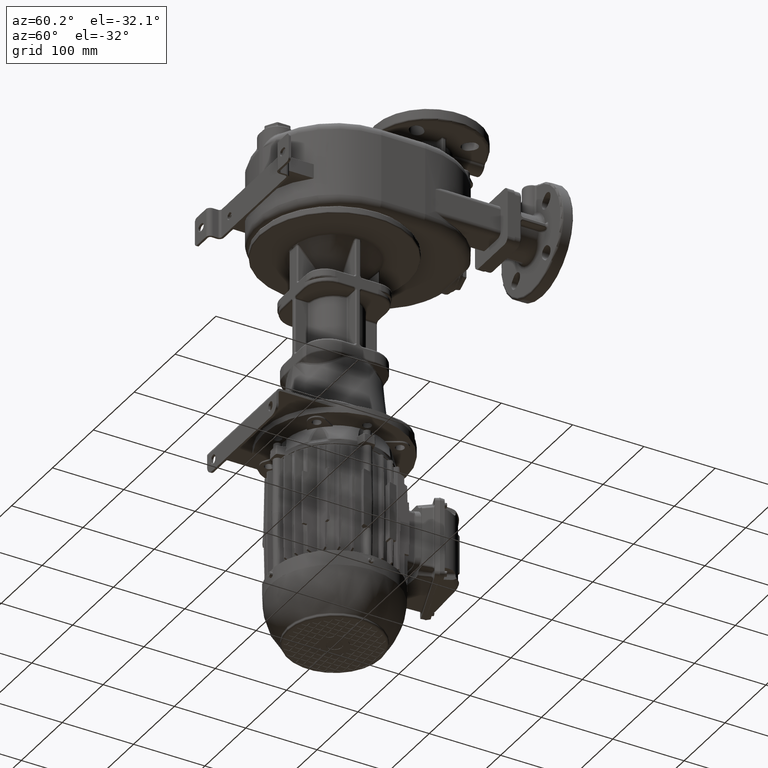
[diagram: clean part render]
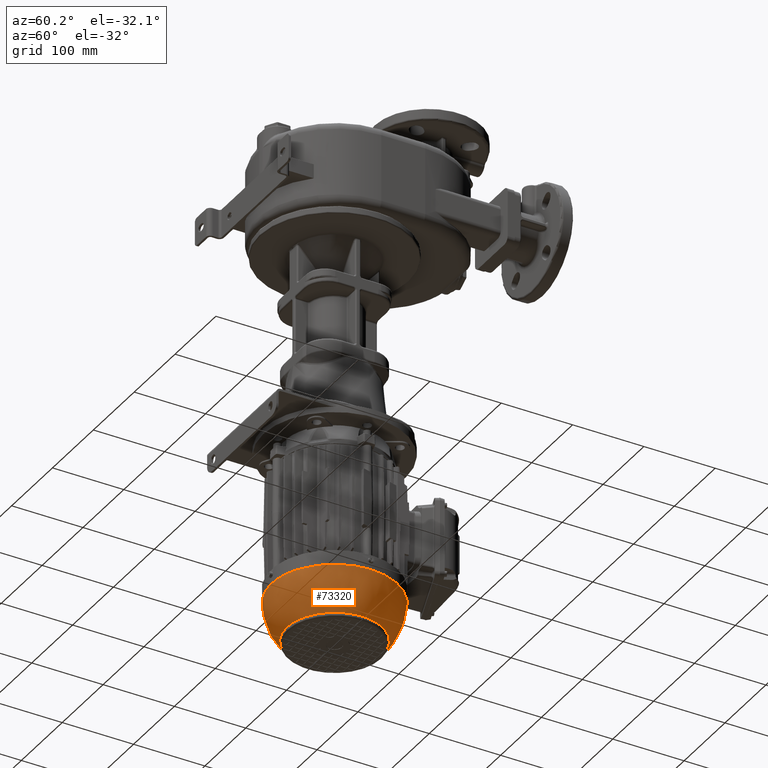
[diagram: same view with one face highlighted and labeled with its STEP entity id]
A machine part, auxiliary view. The second image highlights one B-rep face of the part: STEP entity #73320.
In plain terms, the highlighted spherical surface has radius 88.2484 mm.
Its self-contained STEP definition (entity closure, byte-faithful):
#20551=CARTESIAN_POINT('',(-8.7E1,9.539027356854E1,-5.528100738711E2));
#20563=CARTESIAN_POINT('',(-8.7E1,1.246097264315E2,-5.528100738711E2));
#20992=CARTESIAN_POINT('',(-3.084348699154E-14,1.1E2,-5.528100738710E2));
#20993=DIRECTION('',(0.E0,0.E0,1.E0));
#20994=DIRECTION('',(-9.861914828993E-1,-1.656090548758E-1,0.E0));
#20995=AXIS2_PLACEMENT_3D('',#20992,#20993,#20994);
#20997=CARTESIAN_POINT('',(-8.7E1,1.1E2,-5.505E2));
#20998=DIRECTION('',(-1.E0,0.E0,-1.476638648832E-14));
#20999=DIRECTION('',(0.E0,9.877288322428E-1,-1.561785963450E-1));
#21000=AXIS2_PLACEMENT_3D('',#20997,#20998,#20999);
#21002=CARTESIAN_POINT('',(-3.084348699154E-14,1.1E2,-6.081461572087E2));
#21003=DIRECTION('',(0.E0,0.E0,-1.E0));
#21004=DIRECTION('',(0.E0,-1.E0,0.E0));
#21005=AXIS2_PLACEMENT_3D('',#21002,#21003,#21004);
#21007=CARTESIAN_POINT('',(-3.084348699154E-14,1.1E2,-6.081461572087E2));
#21008=DIRECTION('',(0.E0,0.E0,-1.E0));
#21009=DIRECTION('',(0.E0,1.E0,0.E0));
#21010=AXIS2_PLACEMENT_3D('',#21007,#21008,#21009);
#45234=VERTEX_POINT('',#20551);
#45299=VERTEX_POINT('',#20563);
#46934=CARTESIAN_POINT('',(-1.021108169298E-13,1.768184189185E2,
-6.081461572087E2));
#46936=VERTEX_POINT('',#46934);
#46994=CARTESIAN_POINT('',(-1.443271405111E-13,4.318158108155E1,
-6.081461572087E2));
#46995=VERTEX_POINT('',#46994);
#73305=CARTESIAN_POINT('',(-3.084348699154E-14,1.1E2,-5.505E2));
#73306=DIRECTION('',(0.E0,-1.E0,0.E0));
#73307=DIRECTION('',(1.E0,0.E0,1.476638648832E-14));
#73308=AXIS2_PLACEMENT_3D('',#73305,#73306,#73307);
#73309=SPHERICAL_SURFACE('',#73308,8.824840252204E1);
#73310=ORIENTED_EDGE('',*,*,#73251,.T.);
#73311=ORIENTED_EDGE('',*,*,#73236,.T.);
#73312=EDGE_LOOP('',(#73310,#73311));
#73313=FACE_OUTER_BOUND('',#73312,.F.);
#73315=ORIENTED_EDGE('',*,*,#73314,.T.);
#73317=ORIENTED_EDGE('',*,*,#73316,.T.);
#73318=EDGE_LOOP('',(#73315,#73317));
#73319=FACE_BOUND('',#73318,.F.);
#73320=ADVANCED_FACE('',(#73313,#73319),#73309,.T.);
#20996=CIRCLE('',#20995,8.821816199855E1);
#21001=CIRCLE('',#21000,1.479123212216E1);
#21006=CIRCLE('',#21005,6.681841891845E1);
#21011=CIRCLE('',#21010,6.681841891845E1);
#73236=EDGE_CURVE('',#45299,#45234,#21001,.T.);
#73251=EDGE_CURVE('',#45234,#45299,#20996,.T.);
#73314=EDGE_CURVE('',#46995,#46936,#21006,.T.);
#73316=EDGE_CURVE('',#46936,#46995,#21011,.T.);